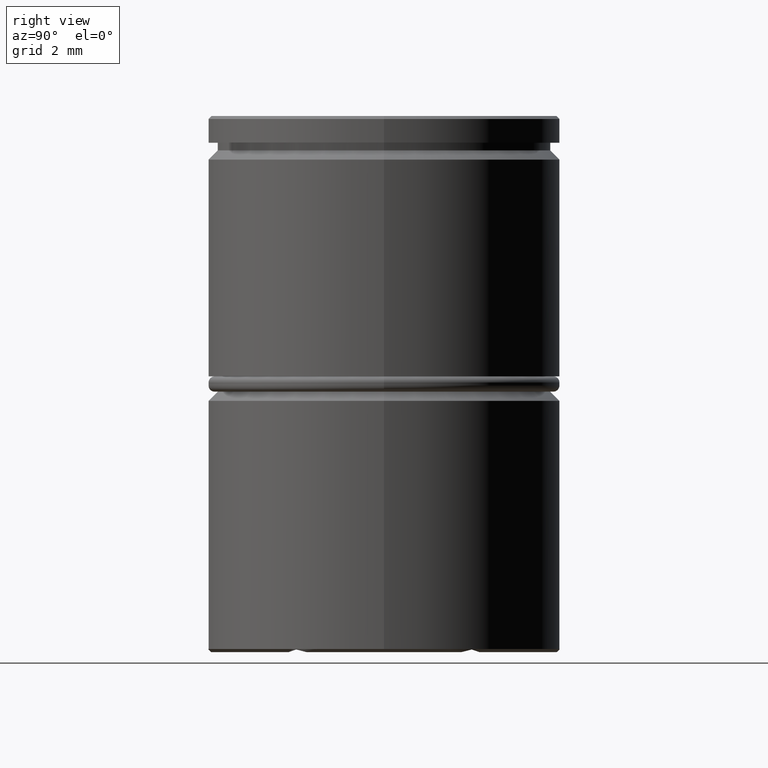
[diagram: clean part render]
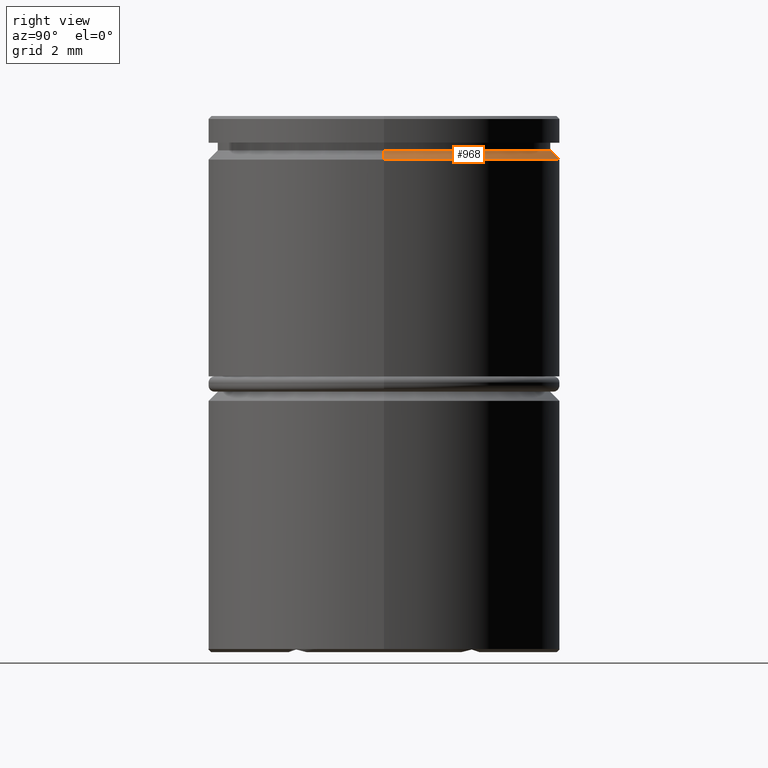
[diagram: same view with one face highlighted and labeled with its STEP entity id]
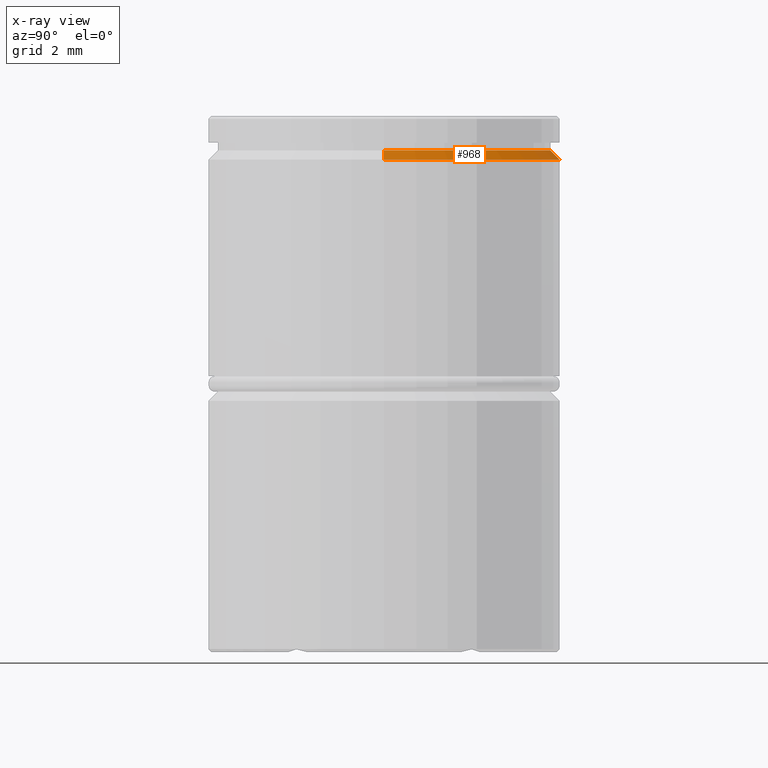
[diagram: x-ray of the same camera — body ghosted, the highlighted face saturated]
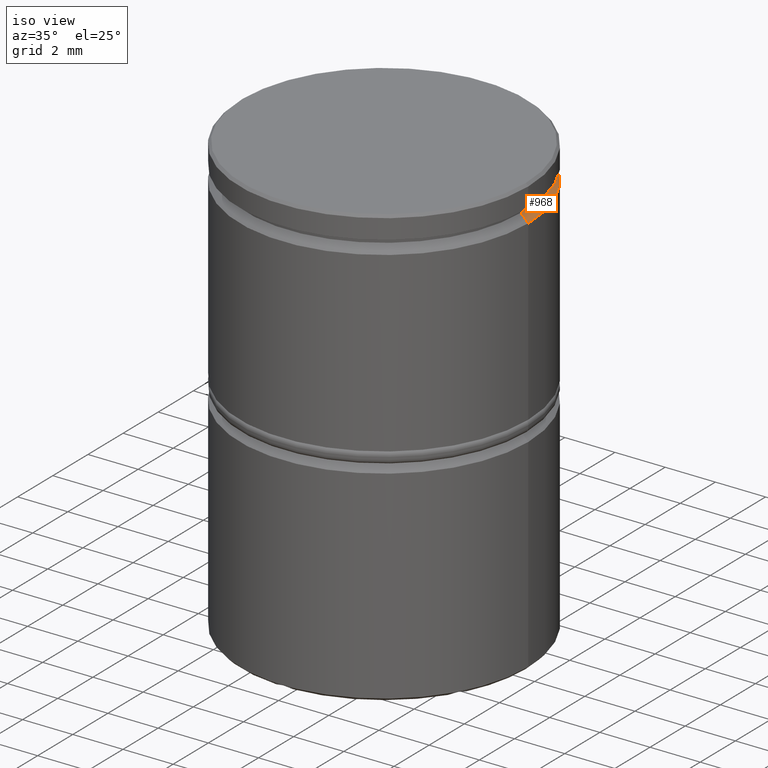
[diagram: same view with one face highlighted and labeled with its STEP entity id]
A machine part, right view. The second image highlights one B-rep face of the part: STEP entity #968.
The next image is the same camera in x-ray: the body ghosted, the highlighted face saturated — about 0% of this face is hidden behind the body in this view.
A second angle (iso view) of the same face is appended — the face is thin or edge-on in the first view.
In plain terms, the highlighted conical surface has half-angle 45 deg.
Its self-contained STEP definition (entity closure, byte-faithful):
#46 = ORIENTED_EDGE ( 'NONE', *, *, #758, .F. ) ;
#78 = AXIS2_PLACEMENT_3D ( 'NONE', #1314, #577, #1013 ) ;
#129 = CARTESIAN_POINT ( 'NONE',  ( 5.450000000000000178, 0.000000000000000000, -1.125000000000000222 ) ) ;
#198 = DIRECTION ( 'NONE',  ( -1.000000000000000000, 0.000000000000000000, 0.000000000000000000 ) ) ;
#254 = VERTEX_POINT ( 'NONE', #1006 ) ;
#276 = EDGE_CURVE ( 'NONE', #1085, #254, #381, .T. ) ;
#381 = LINE ( 'NONE', #815, #1174 ) ;
#398 = EDGE_CURVE ( 'NONE', #1318, #1180, #735, .T. ) ;
#488 = FACE_OUTER_BOUND ( 'NONE', #1093, .T. ) ;
#504 = CARTESIAN_POINT ( 'NONE',  ( 0.000000000000000000, 0.000000000000000000, -1.125000000000000222 ) ) ;
#520 = VECTOR ( 'NONE', #1038, 999.9999999999998863 ) ;
#522 = EDGE_CURVE ( 'NONE', #1085, #1318, #1256, .T. ) ;
#523 = CIRCLE ( 'NONE', #1323, 5.750000000000000000 ) ;
#577 = DIRECTION ( 'NONE',  ( -0.000000000000000000, -0.000000000000000000, 1.000000000000000000 ) ) ;
#589 = CARTESIAN_POINT ( 'NONE',  ( -5.750000000000000000, 7.041719095097280880E-16, -1.424999999999994937 ) ) ;
#603 = ORIENTED_EDGE ( 'NONE', *, *, #276, .T. ) ;
#613 = CONICAL_SURFACE ( 'NONE', #682, 5.450000000000004619, 0.7853981633974498333 ) ;
#682 = AXIS2_PLACEMENT_3D ( 'NONE', #504, #924, #198 ) ;
#735 = LINE ( 'NONE', #824, #520 ) ;
#748 = DIRECTION ( 'NONE',  ( 0.000000000000000000, 0.000000000000000000, -1.000000000000000000 ) ) ;
#758 = EDGE_CURVE ( 'NONE', #1180, #254, #523, .T. ) ;
#790 = DIRECTION ( 'NONE',  ( 0.7071067811865486830, 8.659560562354947649E-17, -0.7071067811865464625 ) ) ;
#815 = CARTESIAN_POINT ( 'NONE',  ( 5.450000000000004619, 6.674325055353080168E-16, -1.125000000000000222 ) ) ;
#824 = CARTESIAN_POINT ( 'NONE',  ( -5.450000000000004619, 0.000000000000000000, -1.125000000000000222 ) ) ;
#924 = DIRECTION ( 'NONE',  ( 0.000000000000000000, 0.000000000000000000, -1.000000000000000000 ) ) ;
#967 = ORIENTED_EDGE ( 'NONE', *, *, #398, .F. ) ;
#968 = ADVANCED_FACE ( 'NONE', ( #488 ), #613, .T. ) ;
#1006 = CARTESIAN_POINT ( 'NONE',  ( 5.750000000000000000, 0.000000000000000000, -1.424999999999994937 ) ) ;
#1013 = DIRECTION ( 'NONE',  ( 1.000000000000000000, 0.000000000000000000, 0.000000000000000000 ) ) ;
#1038 = DIRECTION ( 'NONE',  ( -0.7071067811865486830, 0.000000000000000000, -0.7071067811865464625 ) ) ;
#1065 = CARTESIAN_POINT ( 'NONE',  ( -5.450000000000000178, 6.674325055353075238E-16, -1.125000000000000222 ) ) ;
#1085 = VERTEX_POINT ( 'NONE', #129 ) ;
#1093 = EDGE_LOOP ( 'NONE', ( #1173, #603, #46, #967 ) ) ;
#1173 = ORIENTED_EDGE ( 'NONE', *, *, #522, .F. ) ;
#1174 = VECTOR ( 'NONE', #790, 999.9999999999998863 ) ;
#1175 = DIRECTION ( 'NONE',  ( 1.000000000000000000, 0.000000000000000000, 0.000000000000000000 ) ) ;
#1180 = VERTEX_POINT ( 'NONE', #589 ) ;
#1256 = CIRCLE ( 'NONE', #78, 5.450000000000000178 ) ;
#1271 = CARTESIAN_POINT ( 'NONE',  ( 0.000000000000000000, 0.000000000000000000, -1.424999999999994937 ) ) ;
#1314 = CARTESIAN_POINT ( 'NONE',  ( 0.000000000000000000, 0.000000000000000000, -1.125000000000000222 ) ) ;
#1318 = VERTEX_POINT ( 'NONE', #1065 ) ;
#1323 = AXIS2_PLACEMENT_3D ( 'NONE', #1271, #748, #1175 ) ;